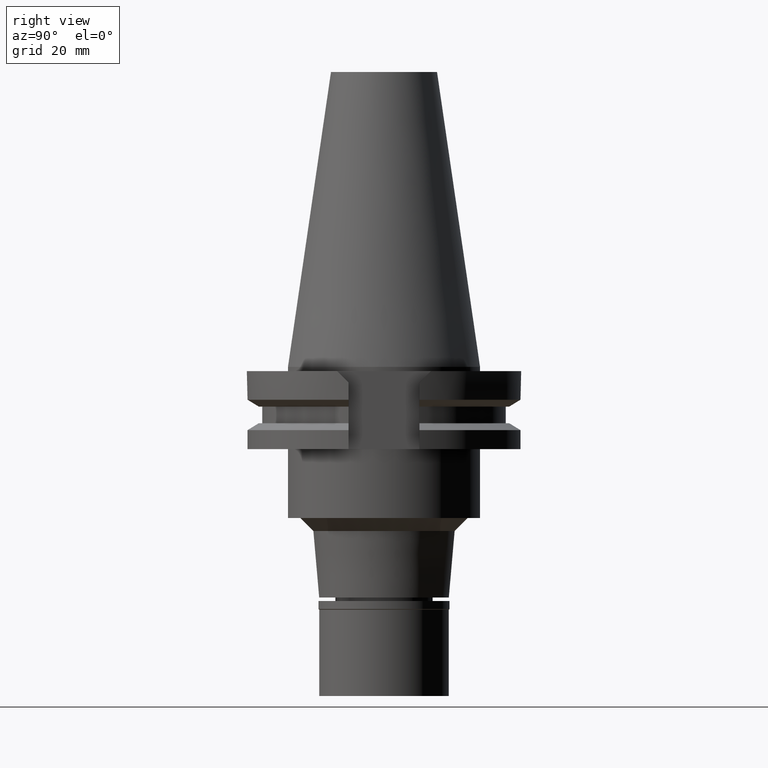
[diagram: clean part render]
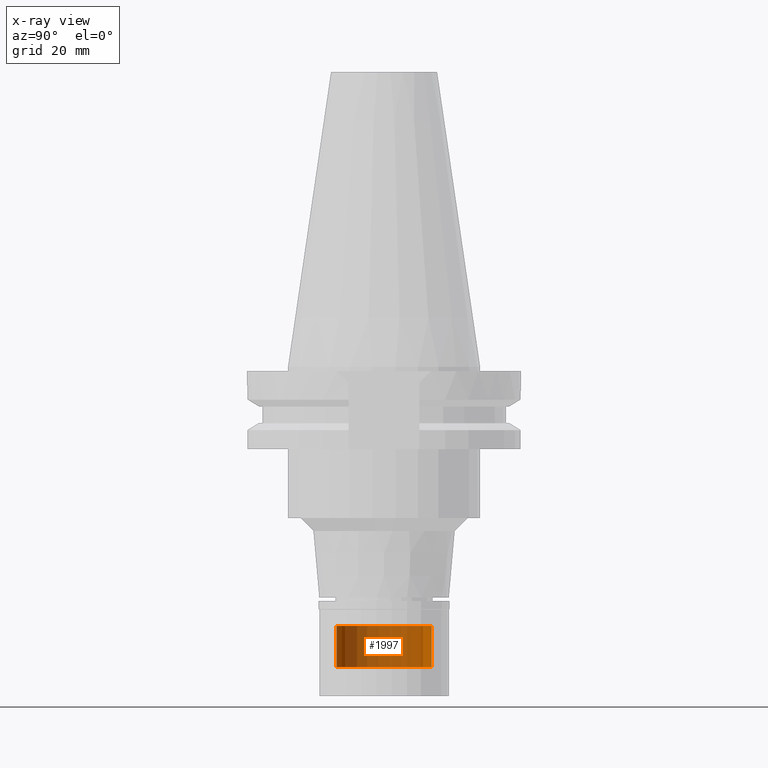
[diagram: x-ray — body ghosted, one internal face saturated and labeled with its STEP entity id]
A machine part, right view, then the same camera in x-ray: the body is ghosted and one INTERNAL B-rep face — a face not visible from any outside direction — is saturated and labeled: STEP entity #1997.
In plain terms, the highlighted cylindrical surface (partial cylindrical patch) has radius 11 mm, axis along (0, 0, -1).
Its self-contained STEP definition (entity closure, byte-faithful):
#39 = EDGE_LOOP ( 'NONE', ( #587, #286, #489, #2308 ) ) ;
#184 = FACE_OUTER_BOUND ( 'NONE', #39, .T. ) ;
#223 = VERTEX_POINT ( 'NONE', #2582 ) ;
#236 = CARTESIAN_POINT ( 'NONE',  ( 0.0000000000000000000, 2.144815787856999694E-14, -60.00000000000000000 ) ) ;
#286 = ORIENTED_EDGE ( 'NONE', *, *, #955, .F. ) ;
#331 = LINE ( 'NONE', #2662, #2116 ) ;
#489 = ORIENTED_EDGE ( 'NONE', *, *, #1557, .T. ) ;
#520 = VERTEX_POINT ( 'NONE', #2523 ) ;
#587 = ORIENTED_EDGE ( 'NONE', *, *, #1590, .T. ) ;
#656 = DIRECTION ( 'NONE',  ( 0.0000000000000000000, -1.000000000000000000, 0.0000000000000000000 ) ) ;
#813 = CIRCLE ( 'NONE', #1959, 11.00000000000000000 ) ;
#918 = CYLINDRICAL_SURFACE ( 'NONE', #986, 11.00000000000000000 ) ;
#955 = EDGE_CURVE ( 'NONE', #2128, #223, #1438, .T. ) ;
#986 = AXIS2_PLACEMENT_3D ( 'NONE', #1956, #1240, #656 ) ;
#1021 = DIRECTION ( 'NONE',  ( 0.0000000000000000000, 0.0000000000000000000, 1.000000000000000000 ) ) ;
#1112 = EDGE_CURVE ( 'NONE', #1381, #520, #331, .T. ) ;
#1240 = DIRECTION ( 'NONE',  ( 0.0000000000000000000, 0.0000000000000000000, -1.000000000000000000 ) ) ;
#1361 = AXIS2_PLACEMENT_3D ( 'NONE', #2829, #1021, #2881 ) ;
#1381 = VERTEX_POINT ( 'NONE', #1960 ) ;
#1438 = LINE ( 'NONE', #3276, #2181 ) ;
#1557 = EDGE_CURVE ( 'NONE', #2128, #1381, #813, .T. ) ;
#1590 = EDGE_CURVE ( 'NONE', #520, #223, #2184, .T. ) ;
#1834 = DIRECTION ( 'NONE',  ( 0.0000000000000000000, 0.0000000000000000000, -1.000000000000000000 ) ) ;
#1900 = DIRECTION ( 'NONE',  ( 0.0000000000000000000, 0.0000000000000000000, -1.000000000000000000 ) ) ;
#1956 = CARTESIAN_POINT ( 'NONE',  ( 0.0000000000000000000, 2.144815787856999694E-14, 75.13750000000000284 ) ) ;
#1959 = AXIS2_PLACEMENT_3D ( 'NONE', #236, #1834, #2898 ) ;
#1960 = CARTESIAN_POINT ( 'NONE',  ( 0.0000000000000000000, 11.00000000000000000, -60.00000000000000000 ) ) ;
#1997 = ADVANCED_FACE ( 'NONE', ( #184 ), #918, .T. ) ;
#2077 = CARTESIAN_POINT ( 'NONE',  ( 0.0000000000000000000, -11.00000000000000000, -60.00000000000000000 ) ) ;
#2116 = VECTOR ( 'NONE', #1900, 1000.000000000000000 ) ;
#2128 = VERTEX_POINT ( 'NONE', #2077 ) ;
#2181 = VECTOR ( 'NONE', #2257, 1000.000000000000000 ) ;
#2184 = CIRCLE ( 'NONE', #1361, 11.00000000000000000 ) ;
#2257 = DIRECTION ( 'NONE',  ( 0.0000000000000000000, 0.0000000000000000000, -1.000000000000000000 ) ) ;
#2308 = ORIENTED_EDGE ( 'NONE', *, *, #1112, .T. ) ;
#2523 = CARTESIAN_POINT ( 'NONE',  ( 0.0000000000000000000, 11.00000000000000000, -69.50000000000000000 ) ) ;
#2582 = CARTESIAN_POINT ( 'NONE',  ( 0.0000000000000000000, -11.00000000000000000, -69.50000000000000000 ) ) ;
#2662 = CARTESIAN_POINT ( 'NONE',  ( 0.0000000000000000000, 11.00000000000000000, -60.00000000000000000 ) ) ;
#2829 = CARTESIAN_POINT ( 'NONE',  ( 0.0000000000000000000, 2.144815787856999694E-14, -69.50000000000000000 ) ) ;
#2881 = DIRECTION ( 'NONE',  ( 0.0000000000000000000, 1.000000000000000000, 0.0000000000000000000 ) ) ;
#2898 = DIRECTION ( 'NONE',  ( 0.0000000000000000000, -1.000000000000000000, 0.0000000000000000000 ) ) ;
#3276 = CARTESIAN_POINT ( 'NONE',  ( 0.0000000000000000000, -11.00000000000000000, -60.00000000000000000 ) ) ;